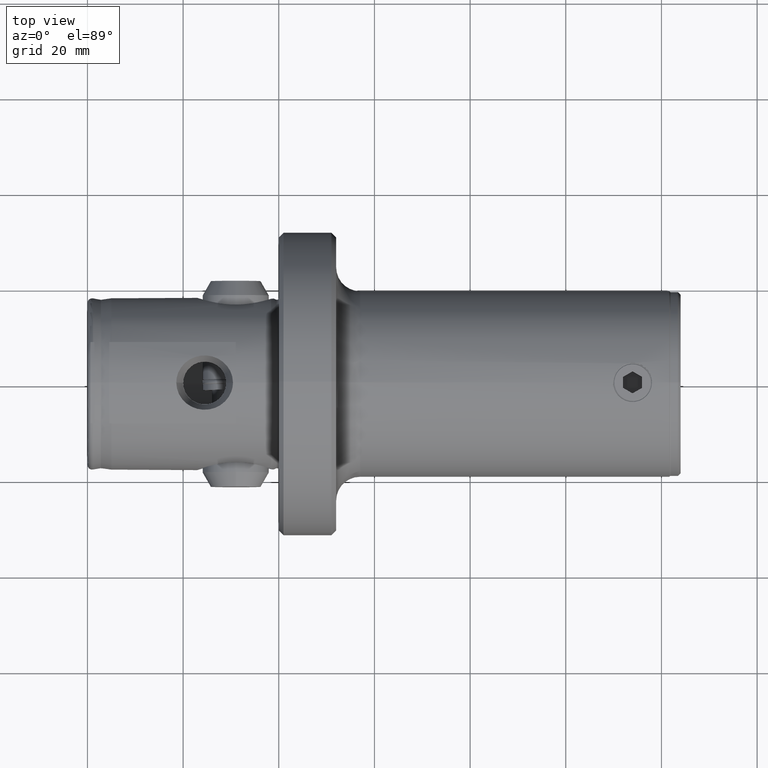
[diagram: clean part render]
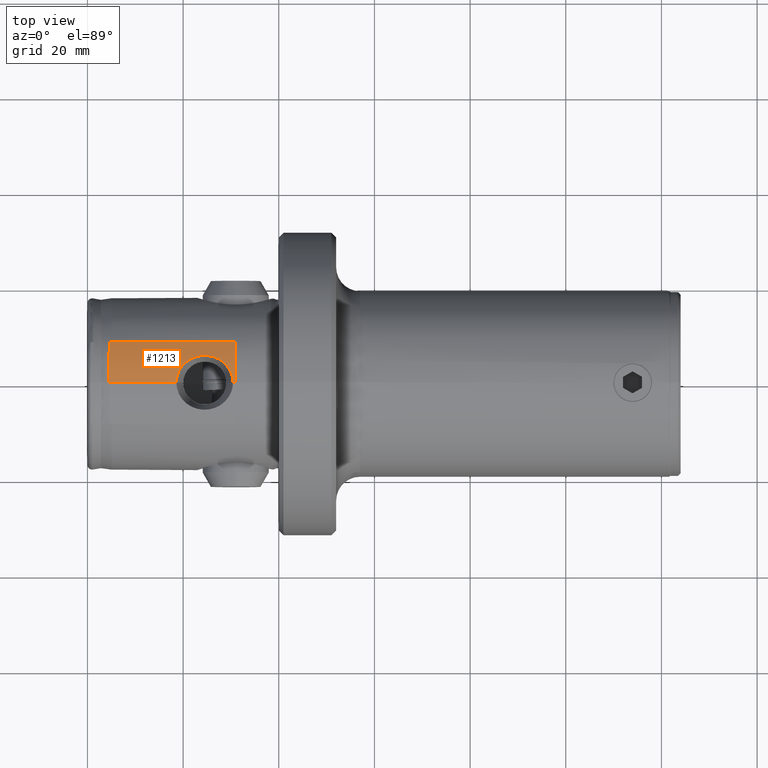
[diagram: same view with one face highlighted and labeled with its STEP entity id]
A machine part, top view. The second image highlights one B-rep face of the part: STEP entity #1213.
In plain terms, the highlighted cylindrical surface (partial cylindrical patch) has radius 18 mm, axis along (-1, 0, 0).
Its self-contained STEP definition (entity closure, byte-faithful):
#54 = ORIENTED_EDGE ( 'NONE', *, *, #3336, .F. ) ;
#57 = ORIENTED_EDGE ( 'NONE', *, *, #4427, .T. ) ;
#74 = EDGE_CURVE ( 'NONE', #2545, #4654, #4309, .T. ) ;
#181 = B_SPLINE_CURVE_WITH_KNOTS ( 'NONE', 3,
 ( #2226, #3055, #3961, #1494, #4362, #1908, #4772, #2323, #5194, #2743, #287, #3150, #702, #3564, #1108, #3971, #1515, #4376, #1926, #4786, #2340, #5213, #2761, #307, #3168, #717, #3580, #1127, #3993, #1533, #4397, #1941, #4801, #2360, #5231, #2778, #325, #3188, #737, #3596, #1147, #4015 ),
 .UNSPECIFIED., .F., .F.,
 ( 4, 2, 2, 2, 2, 2, 2, 2, 2, 2, 2, 2, 2, 2, 2, 2, 2, 2, 2, 2, 4 ),
 ( 0.01360910775429641900, 0.01474328752887493900, 0.01587746730345346000, 0.01701164707803198100, 0.01814582685261050000, 0.01928000662718901800, 0.01984709651447828100, 0.02041418640176753700, 0.02154836617634605500, 0.02268254595092457400, 0.02324963583821382900, 0.02381672572550308200, 0.02495090550008157900, 0.02608508527466007700, 0.02721926504923857400, 0.02778635493652782300, 0.02835344482381707200, 0.02948762459839557300, 0.03062180437297407400, 0.03118889426026332300, 0.03175598414755257500 ),
 .UNSPECIFIED. ) ;
#287 = CARTESIAN_POINT ( 'NONE',  ( 28.06691972846662300, 4.548958210731684400, 17.34696330688903000 ) ) ;
#293 = ORIENTED_EDGE ( 'NONE', *, *, #5016, .F. ) ;
#307 = CARTESIAN_POINT ( 'NONE',  ( 22.98052156601741900, 5.500599572436073900, 17.06910603588053400 ) ) ;
#325 = CARTESIAN_POINT ( 'NONE',  ( 18.77510293552835200, 1.509791208866784200, 17.87041579329418900 ) ) ;
#387 = CARTESIAN_POINT ( 'NONE',  ( 4.501924119433152100, 1.318032018692837200E-015, 17.93000000000000000 ) ) ;
#702 = CARTESIAN_POINT ( 'NONE',  ( 27.41830335428071000, 4.945178645238853800, 17.23760156847704300 ) ) ;
#717 = CARTESIAN_POINT ( 'NONE',  ( 21.91057067136104300, 5.120349963584339500, 17.18696343553972700 ) ) ;
#737 = CARTESIAN_POINT ( 'NONE',  ( 18.62626926727870100, 0.7658814693616647900, 17.91470760956920900 ) ) ;
#898 = LINE ( 'NONE', #2679, #5121 ) ;
#1016 = DIRECTION ( 'NONE',  ( -1.000000000000000000, 0.0000000000000000000, 0.0000000000000000000 ) ) ;
#1021 = VERTEX_POINT ( 'NONE', #2627 ) ;
#1108 = CARTESIAN_POINT ( 'NONE',  ( 26.90605426236586000, 5.192209219451712000, 17.16502539275114700 ) ) ;
#1127 = CARTESIAN_POINT ( 'NONE',  ( 20.92801361076500700, 4.545167376228783400, 17.34794643732219300 ) ) ;
#1147 = CARTESIAN_POINT ( 'NONE',  ( 18.57554470225380100, 0.1914159347592796500, 17.92999999999999600 ) ) ;
#1190 = CARTESIAN_POINT ( 'NONE',  ( 4.561173011721211700, 8.500000000000001800, 15.79663165262242700 ) ) ;
#1205 = DIRECTION ( 'NONE',  ( -1.000000000000000000, -0.0000000000000000000, -0.0000000000000000000 ) ) ;
#1213 = ADVANCED_FACE ( 'NONE', ( #4183 ), #1877, .T. ) ;
#1478 = VECTOR ( 'NONE', #1546, 1000.000000000000000 ) ;
#1494 = CARTESIAN_POINT ( 'NONE',  ( 30.22428742545745500, 1.512255011053177400, 17.87023569415771400 ) ) ;
#1515 = CARTESIAN_POINT ( 'NONE',  ( 26.01301121549560900, 5.502376496687897900, 17.06853502492067800 ) ) ;
#1533 = CARTESIAN_POINT ( 'NONE',  ( 20.21685277232093000, 3.927773242946562200, 17.49673650399407500 ) ) ;
#1546 = DIRECTION ( 'NONE',  ( -1.000000000000000000, 0.0000000000000000000, 0.0000000000000000000 ) ) ;
#1595 = CARTESIAN_POINT ( 'NONE',  ( 4.526975339076886800, 5.815750174379757300, 17.02811837977963100 ) ) ;
#1603 = LINE ( 'NONE', #2773, #1478 ) ;
#1851 = EDGE_CURVE ( 'NONE', #2208, #1021, #181, .T. ) ;
#1877 = CYLINDRICAL_SURFACE ( 'NONE', #4756, 18.00000000000000400 ) ;
#1908 = CARTESIAN_POINT ( 'NONE',  ( 29.79594064907516700, 2.573923875962815400, 17.74851583456586800 ) ) ;
#1926 = CARTESIAN_POINT ( 'NONE',  ( 24.87689642852934900, 5.678383750228683800, 17.01086525989592200 ) ) ;
#1941 = CARTESIAN_POINT ( 'NONE',  ( 19.83493036921722900, 3.505455948827530300, 17.58596000696021700 ) ) ;
#2009 = CARTESIAN_POINT ( 'NONE',  ( 4.512318024354617500, 3.669854151725033400, 17.55581995454566900 ) ) ;
#2208 = VERTEX_POINT ( 'NONE', #3199 ) ;
#2226 = CARTESIAN_POINT ( 'NONE',  ( 30.42445529774620600, -1.071667539742744500E-023, 17.93000000000000000 ) ) ;
#2261 = ORIENTED_EDGE ( 'NONE', *, *, #3802, .T. ) ;
#2323 = CARTESIAN_POINT ( 'NONE',  ( 29.16872895660654300, 3.515783486802860100, 17.58606282093919400 ) ) ;
#2340 = CARTESIAN_POINT ( 'NONE',  ( 24.11663054508899500, 5.669258924182950700, 17.01390624646067100 ) ) ;
#2360 = CARTESIAN_POINT ( 'NONE',  ( 19.39080773785514100, 2.898781056789243600, 17.69777312190536700 ) ) ;
#2421 = CARTESIAN_POINT ( 'NONE',  ( 4.506949049834921600, 2.572302290702973800, 17.74910654927889600 ) ) ;
#2545 = VERTEX_POINT ( 'NONE', #5057 ) ;
#2627 = CARTESIAN_POINT ( 'NONE',  ( 18.57554470225370100, 7.387272118025272300E-015, 17.93000000000003200 ) ) ;
#2664 = CARTESIAN_POINT ( 'NONE',  ( 4.501924119433152100, 1.318032018692837200E-015, 17.93000000000000000 ) ) ;
#2679 = CARTESIAN_POINT ( 'NONE',  ( 31.00000000000000000, 8.500000000000001800, 15.79663165262242700 ) ) ;
#2743 = CARTESIAN_POINT ( 'NONE',  ( 28.36499703567021100, 4.319612037852444100, 17.40601111101617300 ) ) ;
#2761 = CARTESIAN_POINT ( 'NONE',  ( 23.54437903640693700, 5.606872356921136300, 17.03451315339182800 ) ) ;
#2773 = CARTESIAN_POINT ( 'NONE',  ( 31.00000000000000000, 0.0000000000000000000, 17.93000000000000000 ) ) ;
#2778 = CARTESIAN_POINT ( 'NONE',  ( 18.89246308275029700, 1.871655050426903600, 17.83590255465142600 ) ) ;
#2806 = DIRECTION ( 'NONE',  ( -1.000000000000000000, 0.0000000000000000000, 0.0000000000000000000 ) ) ;
#2841 = CARTESIAN_POINT ( 'NONE',  ( 4.501924119433152100, 0.7342156615914451300, 17.93000000000000000 ) ) ;
#2910 = ORIENTED_EDGE ( 'NONE', *, *, #74, .T. ) ;
#3020 = CARTESIAN_POINT ( 'NONE',  ( 4.561173011721211700, 8.500000000000001800, 15.79663165262242700 ) ) ;
#3055 = CARTESIAN_POINT ( 'NONE',  ( 30.42445529774621000, 0.3809652001136524800, 17.93000000000000700 ) ) ;
#3150 = CARTESIAN_POINT ( 'NONE',  ( 27.58534548090496900, 4.851172622815272300, 17.26427333616189200 ) ) ;
#3168 = CARTESIAN_POINT ( 'NONE',  ( 22.61631401092382300, 5.396018564207124300, 17.10276199159195400 ) ) ;
#3188 = CARTESIAN_POINT ( 'NONE',  ( 18.65634118643579200, 0.9537062919278279600, 17.90567638202802700 ) ) ;
#3199 = CARTESIAN_POINT ( 'NONE',  ( 30.42445529774620600, -1.071667539742744500E-023, 17.93000000000000000 ) ) ;
#3336 = EDGE_CURVE ( 'NONE', #2545, #2208, #3773, .T. ) ;
#3362 = B_SPLINE_CURVE_WITH_KNOTS ( 'NONE', 3,
 ( #1190, #4056, #1595, #4459, #2009, #4865, #2421, #5297, #2841, #387 ),
 .UNSPECIFIED., .F., .F.,
 ( 4, 2, 2, 2, 4 ),
 ( 2.236915273377554400E-007, 0.004405091776158564400, 0.005506308797316371500, 0.006607525818474176800, 0.008809959860789792800 ),
 .UNSPECIFIED. ) ;
#3507 = DIRECTION ( 'NONE',  ( 0.0000000000000000000, 0.0000000000000000000, 1.000000000000000000 ) ) ;
#3523 = CARTESIAN_POINT ( 'NONE',  ( 31.00000000000000000, 0.0000000000000000000, -0.06999999999999996500 ) ) ;
#3564 = CARTESIAN_POINT ( 'NONE',  ( 27.07895362516774900, 5.115469253199727900, 17.18803691634838800 ) ) ;
#3580 = CARTESIAN_POINT ( 'NONE',  ( 21.56655573510353100, 4.947097282873361500, 17.23807999303060600 ) ) ;
#3596 = CARTESIAN_POINT ( 'NONE',  ( 18.58581151136006700, 0.3851183498645149300, 17.92688767769043400 ) ) ;
#3656 = CARTESIAN_POINT ( 'NONE',  ( 31.00000000000000000, 0.0000000000000000000, -0.06999999999999996500 ) ) ;
#3674 = VERTEX_POINT ( 'NONE', #3020 ) ;
#3773 = LINE ( 'NONE', #5255, #5262 ) ;
#3786 = VERTEX_POINT ( 'NONE', #2664 ) ;
#3802 = EDGE_CURVE ( 'NONE', #4654, #3674, #898, .T. ) ;
#3832 = DIRECTION ( 'NONE',  ( 0.0000000000000000000, 0.0000000000000000000, -1.000000000000000000 ) ) ;
#3903 = CARTESIAN_POINT ( 'NONE',  ( 31.00000000000000000, 8.500000000000001800, 15.79663165262242700 ) ) ;
#3957 = EDGE_LOOP ( 'NONE', ( #54, #2910, #2261, #57, #293, #4185 ) ) ;
#3961 = CARTESIAN_POINT ( 'NONE',  ( 30.38336581847062200, 0.7681734596086007300, 17.91746456608988000 ) ) ;
#3971 = CARTESIAN_POINT ( 'NONE',  ( 26.37781099911529000, 5.397836957271664500, 17.10218400938147500 ) ) ;
#3993 = CARTESIAN_POINT ( 'NONE',  ( 20.63039370256532500, 4.315901487580737800, 17.40694282603676200 ) ) ;
#4015 = CARTESIAN_POINT ( 'NONE',  ( 18.57554470225370100, 7.387272118025272300E-015, 17.93000000000003200 ) ) ;
#4056 = CARTESIAN_POINT ( 'NONE',  ( 4.541645771106434600, 7.187216486560393100, 16.49991008679421300 ) ) ;
#4183 = FACE_OUTER_BOUND ( 'NONE', #3957, .T. ) ;
#4185 = ORIENTED_EDGE ( 'NONE', *, *, #1851, .F. ) ;
#4309 = CIRCLE ( 'NONE', #4345, 18.00000000000000400 ) ;
#4345 = AXIS2_PLACEMENT_3D ( 'NONE', #3656, #1205, #3832 ) ;
#4362 = CARTESIAN_POINT ( 'NONE',  ( 30.10692999351813300, 1.873383340865529200, 17.83572605408934200 ) ) ;
#4376 = CARTESIAN_POINT ( 'NONE',  ( 25.25668822700170300, 5.643795072353519500, 17.02248686098703300 ) ) ;
#4397 = CARTESIAN_POINT ( 'NONE',  ( 20.08398971681412300, 3.790248747686351600, 17.52702132769097400 ) ) ;
#4427 = EDGE_CURVE ( 'NONE', #3674, #3786, #3362, .T. ) ;
#4459 = CARTESIAN_POINT ( 'NONE',  ( 4.514512600342740700, 4.030500815527453500, 17.47681169941615000 ) ) ;
#4654 = VERTEX_POINT ( 'NONE', #3903 ) ;
#4756 = AXIS2_PLACEMENT_3D ( 'NONE', #3523, #1016, #3507 ) ;
#4772 = CARTESIAN_POINT ( 'NONE',  ( 29.60733662265327800, 2.901956093779709100, 17.69727156016931600 ) ) ;
#4786 = CARTESIAN_POINT ( 'NONE',  ( 24.30682891010763700, 5.678093498899985800, 17.01096174775135200 ) ) ;
#4801 = CARTESIAN_POINT ( 'NONE',  ( 19.71815507738248400, 3.357762001933571200, 17.61472809149315200 ) ) ;
#4865 = CARTESIAN_POINT ( 'NONE',  ( 4.508536962439103000, 2.941221782085254400, 17.69194170110860800 ) ) ;
#5016 = EDGE_CURVE ( 'NONE', #1021, #3786, #1603, .T. ) ;
#5057 = CARTESIAN_POINT ( 'NONE',  ( 31.00000000000000000, 0.0000000000000000000, 17.93000000000000000 ) ) ;
#5121 = VECTOR ( 'NONE', #5132, 1000.000000000000000 ) ;
#5132 = DIRECTION ( 'NONE',  ( -1.000000000000000000, 0.0000000000000000000, 0.0000000000000000000 ) ) ;
#5194 = CARTESIAN_POINT ( 'NONE',  ( 28.91559999438211300, 3.804064267599762200, 17.52542859830050800 ) ) ;
#5213 = CARTESIAN_POINT ( 'NONE',  ( 23.73587562974411500, 5.633765542119971500, 17.02564374932128300 ) ) ;
#5231 = CARTESIAN_POINT ( 'NONE',  ( 19.20294744332403200, 2.571778301346444800, 17.74882137777874300 ) ) ;
#5255 = CARTESIAN_POINT ( 'NONE',  ( 31.00000000000000000, 0.0000000000000000000, 17.93000000000000000 ) ) ;
#5262 = VECTOR ( 'NONE', #2806, 1000.000000000000000 ) ;
#5297 = CARTESIAN_POINT ( 'NONE',  ( 4.503167209855087400, 1.469061508139440900, 17.88525124977483900 ) ) ;